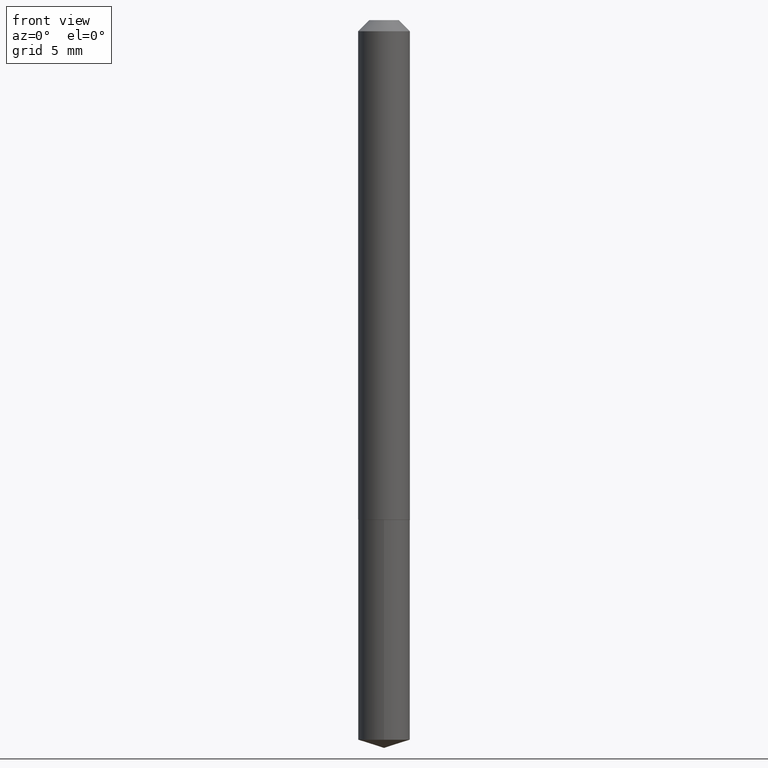
[diagram: clean part render]
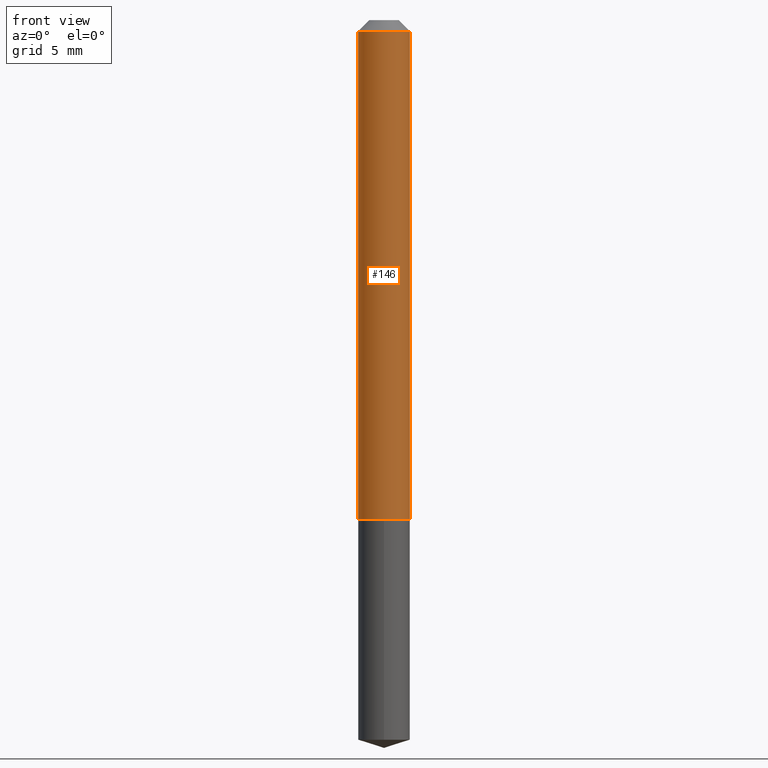
[diagram: same view with one face highlighted and labeled with its STEP entity id]
A machine part, front view. The second image highlights one B-rep face of the part: STEP entity #146.
In plain terms, the highlighted cylindrical surface (edge-blend (fillet) strip) has radius 1.8504 mm, axis along (-0, 0, 1).
Its self-contained STEP definition (entity closure, byte-faithful):
#2 = CARTESIAN_POINT ( 'NONE',  ( -0.07284999999999999809, -1.989689653455501320E-15, -0.03125000000000020123 ) ) ;
#18 = ORIENTED_EDGE ( 'NONE', *, *, #134, .F. ) ;
#25 = VECTOR ( 'NONE', #368, 39.37007874015748143 ) ;
#45 = VERTEX_POINT ( 'NONE', #59 ) ;
#54 = ORIENTED_EDGE ( 'NONE', *, *, #283, .T. ) ;
#56 = CARTESIAN_POINT ( 'NONE',  ( -0.07285000000000008136, 5.176303830012335635E-16, -3.583444213250702632E-30 ) ) ;
#59 = CARTESIAN_POINT ( 'NONE',  ( 0.07285000000000015075, -5.414240112144066527E-15, -1.405000000000000471 ) ) ;
#61 = DIRECTION ( 'NONE',  ( 1.000000000000000000, -6.982962677686265922E-15, 0.000000000000000000 ) ) ;
#85 = EDGE_LOOP ( 'NONE', ( #18, #111, #54, #153 ) ) ;
#92 = VERTEX_POINT ( 'NONE', #2 ) ;
#99 = DIRECTION ( 'NONE',  ( -2.445468806185136597E-29, 3.491481338843145583E-15, 1.000000000000000000 ) ) ;
#111 = ORIENTED_EDGE ( 'NONE', *, *, #271, .T. ) ;
#132 = CARTESIAN_POINT ( 'NONE',  ( -0.07285000000000015075, -4.387900898073387102E-15, -1.405000000000000471 ) ) ;
#134 = EDGE_CURVE ( 'NONE', #381, #92, #155, .T. ) ;
#136 = FACE_OUTER_BOUND ( 'NONE', #85, .T. ) ;
#143 = DIRECTION ( 'NONE',  ( 1.000000000000000000, -6.982962677686266711E-15, 4.876176775795935793E-29 ) ) ;
#146 = ADVANCED_FACE ( 'NONE', ( #136 ), #371, .T. ) ;
#153 = ORIENTED_EDGE ( 'NONE', *, *, #301, .F. ) ;
#155 = LINE ( 'NONE', #56, #337 ) ;
#163 = DIRECTION ( 'NONE',  ( 1.000000000000000000, -6.982962677686263555E-15, 0.000000000000000000 ) ) ;
#168 = CARTESIAN_POINT ( 'NONE',  ( 0.000000000000000000, 0.000000000000000000, 0.000000000000000000 ) ) ;
#181 = AXIS2_PLACEMENT_3D ( 'NONE', #361, #99, #163 ) ;
#183 = DIRECTION ( 'NONE',  ( -2.445468806185136877E-29, 3.491481338843145188E-15, 1.000000000000000000 ) ) ;
#191 = CARTESIAN_POINT ( 'NONE',  ( 7.642090019328600035E-31, -1.091087918388489897E-16, -0.03125000000000020123 ) ) ;
#199 = AXIS2_PLACEMENT_3D ( 'NONE', #191, #215, #61 ) ;
#215 = DIRECTION ( 'NONE',  ( -2.445468806185136597E-29, 3.491481338843145583E-15, 1.000000000000000000 ) ) ;
#271 = EDGE_CURVE ( 'NONE', #381, #45, #344, .T. ) ;
#283 = EDGE_CURVE ( 'NONE', #45, #379, #365, .T. ) ;
#289 = CIRCLE ( 'NONE', #199, 0.07284999999999999809 ) ;
#301 = EDGE_CURVE ( 'NONE', #92, #379, #289, .T. ) ;
#305 = CARTESIAN_POINT ( 'NONE',  ( 0.07285000000000008136, -5.087088310694450726E-16, 3.552294781167343025E-30 ) ) ;
#322 = AXIS2_PLACEMENT_3D ( 'NONE', #168, #340, #143 ) ;
#334 = CARTESIAN_POINT ( 'NONE',  ( 0.07284999999999999809, -6.178176229082934830E-16, -0.03125000000000020123 ) ) ;
#337 = VECTOR ( 'NONE', #183, 39.37007874015748143 ) ;
#340 = DIRECTION ( 'NONE',  ( -2.445468806185136597E-29, 3.491481338843145583E-15, 1.000000000000000000 ) ) ;
#344 = CIRCLE ( 'NONE', #181, 0.07285000000000015075 ) ;
#361 = CARTESIAN_POINT ( 'NONE',  ( 3.435883672690118017E-29, -4.905531281074621455E-15, -1.405000000000000471 ) ) ;
#365 = LINE ( 'NONE', #305, #25 ) ;
#368 = DIRECTION ( 'NONE',  ( -2.445468806185136877E-29, 3.491481338843145188E-15, 1.000000000000000000 ) ) ;
#371 = CYLINDRICAL_SURFACE ( 'NONE', #322, 0.07285000000000008136 ) ;
#379 = VERTEX_POINT ( 'NONE', #334 ) ;
#381 = VERTEX_POINT ( 'NONE', #132 ) ;